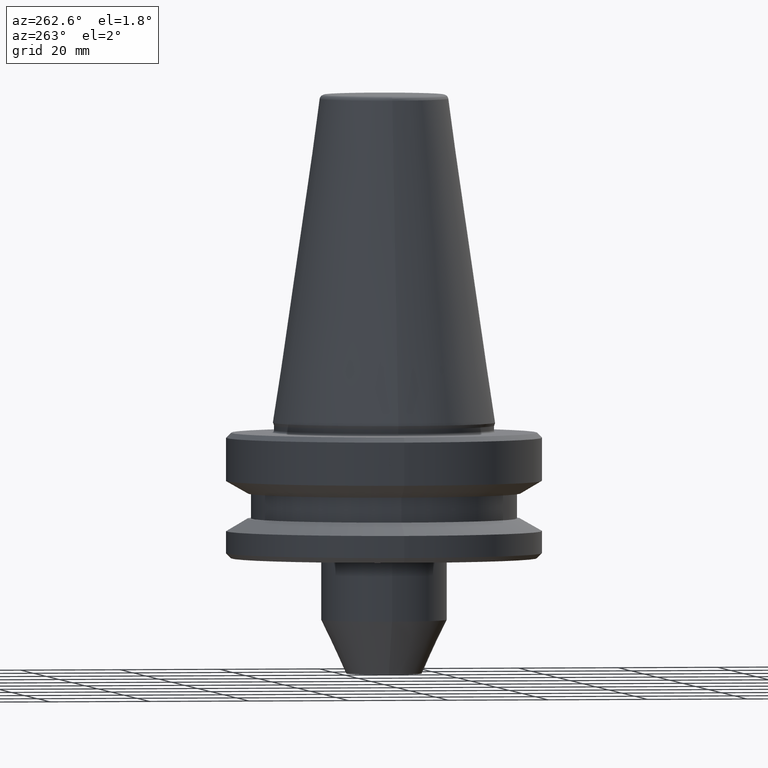
[diagram: clean part render]
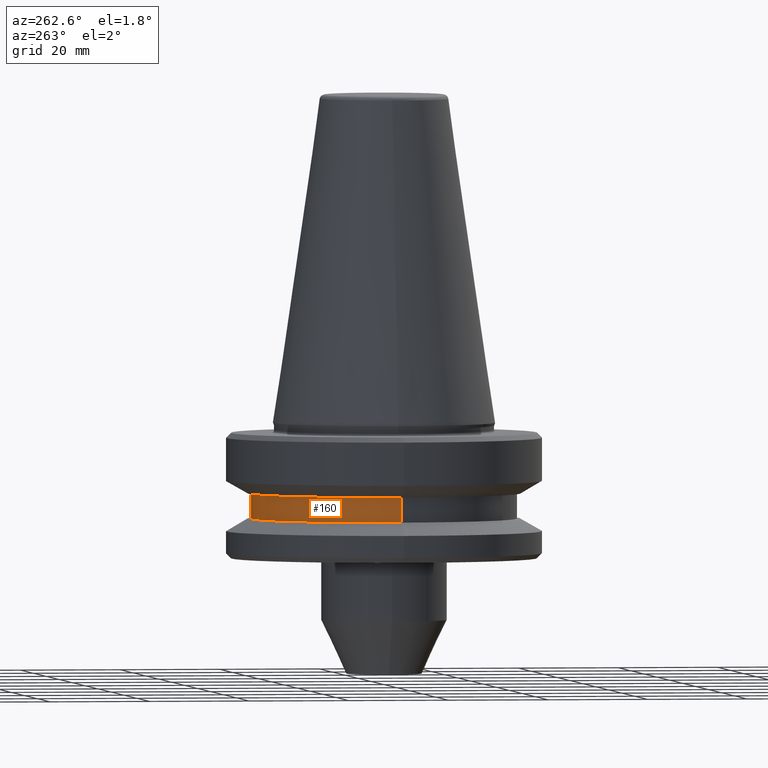
[diagram: same view with one face highlighted and labeled with its STEP entity id]
A machine part, auxiliary view. The second image highlights one B-rep face of the part: STEP entity #160.
In plain terms, the highlighted cylindrical surface (partial cylindrical patch) has radius 26.5 mm, axis along (-0, -0, 1).
Its self-contained STEP definition (entity closure, byte-faithful):
#25 = CARTESIAN_POINT ( 'NONE',  ( 26.50000000000019200, 0.0000000000000000000, -14.09999999999966700 ) ) ;
#38 = CARTESIAN_POINT ( 'NONE',  ( 0.0000000000000000000, 0.0000000000000000000, 119.6426757920085500 ) ) ;
#41 = FACE_OUTER_BOUND ( 'NONE', #714, .T. ) ;
#65 = CYLINDRICAL_SURFACE ( 'NONE', #896, 26.50000000000019200 ) ;
#70 = DIRECTION ( 'NONE',  ( -0.0000000000000000000, -0.0000000000000000000, 1.000000000000000000 ) ) ;
#82 = CIRCLE ( 'NONE', #166, 26.50000000000019200 ) ;
#101 = ORIENTED_EDGE ( 'NONE', *, *, #103, .T. ) ;
#103 = EDGE_CURVE ( 'NONE', #890, #907, #477, .T. ) ;
#126 = ORIENTED_EDGE ( 'NONE', *, *, #800, .T. ) ;
#141 = VERTEX_POINT ( 'NONE', #25 ) ;
#160 = ADVANCED_FACE ( 'NONE', ( #41 ), #65, .T. ) ;
#166 = AXIS2_PLACEMENT_3D ( 'NONE', #313, #70, #231 ) ;
#213 = CARTESIAN_POINT ( 'NONE',  ( 26.50000000000019200, 0.0000000000000000000, 119.6426757920085500 ) ) ;
#231 = DIRECTION ( 'NONE',  ( 1.000000000000000000, 0.0000000000000000000, 0.0000000000000000000 ) ) ;
#264 = DIRECTION ( 'NONE',  ( -0.0000000000000000000, -0.0000000000000000000, 1.000000000000000000 ) ) ;
#297 = CARTESIAN_POINT ( 'NONE',  ( 0.0000000000000000000, 0.0000000000000000000, -14.09999999999966700 ) ) ;
#313 = CARTESIAN_POINT ( 'NONE',  ( 0.0000000000000000000, 0.0000000000000000000, -19.10000000000011500 ) ) ;
#324 = CIRCLE ( 'NONE', #513, 26.50000000000019200 ) ;
#345 = DIRECTION ( 'NONE',  ( 1.000000000000000000, 0.0000000000000000000, 0.0000000000000000000 ) ) ;
#359 = EDGE_CURVE ( 'NONE', #141, #907, #324, .T. ) ;
#360 = CARTESIAN_POINT ( 'NONE',  ( -26.50000000000019200, 3.245314017740509400E-015, 119.6426757920085500 ) ) ;
#362 = DIRECTION ( 'NONE',  ( -0.0000000000000000000, -0.0000000000000000000, 1.000000000000000000 ) ) ;
#365 = DIRECTION ( 'NONE',  ( -0.0000000000000000000, -0.0000000000000000000, 1.000000000000000000 ) ) ;
#376 = LINE ( 'NONE', #213, #390 ) ;
#390 = VECTOR ( 'NONE', #264, 1000.000000000000000 ) ;
#477 = LINE ( 'NONE', #360, #879 ) ;
#505 = DIRECTION ( 'NONE',  ( -0.0000000000000000000, -0.0000000000000000000, 1.000000000000000000 ) ) ;
#513 = AXIS2_PLACEMENT_3D ( 'NONE', #297, #505, #657 ) ;
#649 = ORIENTED_EDGE ( 'NONE', *, *, #359, .F. ) ;
#657 = DIRECTION ( 'NONE',  ( 1.000000000000000000, 0.0000000000000000000, 0.0000000000000000000 ) ) ;
#714 = EDGE_LOOP ( 'NONE', ( #126, #101, #649, #985 ) ) ;
#800 = EDGE_CURVE ( 'NONE', #931, #890, #82, .T. ) ;
#815 = CARTESIAN_POINT ( 'NONE',  ( -26.50000000000019200, 3.245314017740509400E-015, -19.10000000000011500 ) ) ;
#842 = CARTESIAN_POINT ( 'NONE',  ( -26.50000000000019200, 3.245314017740509400E-015, -14.09999999999966700 ) ) ;
#869 = EDGE_CURVE ( 'NONE', #931, #141, #376, .T. ) ;
#879 = VECTOR ( 'NONE', #365, 1000.000000000000000 ) ;
#890 = VERTEX_POINT ( 'NONE', #815 ) ;
#896 = AXIS2_PLACEMENT_3D ( 'NONE', #38, #362, #345 ) ;
#907 = VERTEX_POINT ( 'NONE', #842 ) ;
#931 = VERTEX_POINT ( 'NONE', #983 ) ;
#983 = CARTESIAN_POINT ( 'NONE',  ( 26.50000000000019200, 0.0000000000000000000, -19.10000000000011500 ) ) ;
#985 = ORIENTED_EDGE ( 'NONE', *, *, #869, .F. ) ;